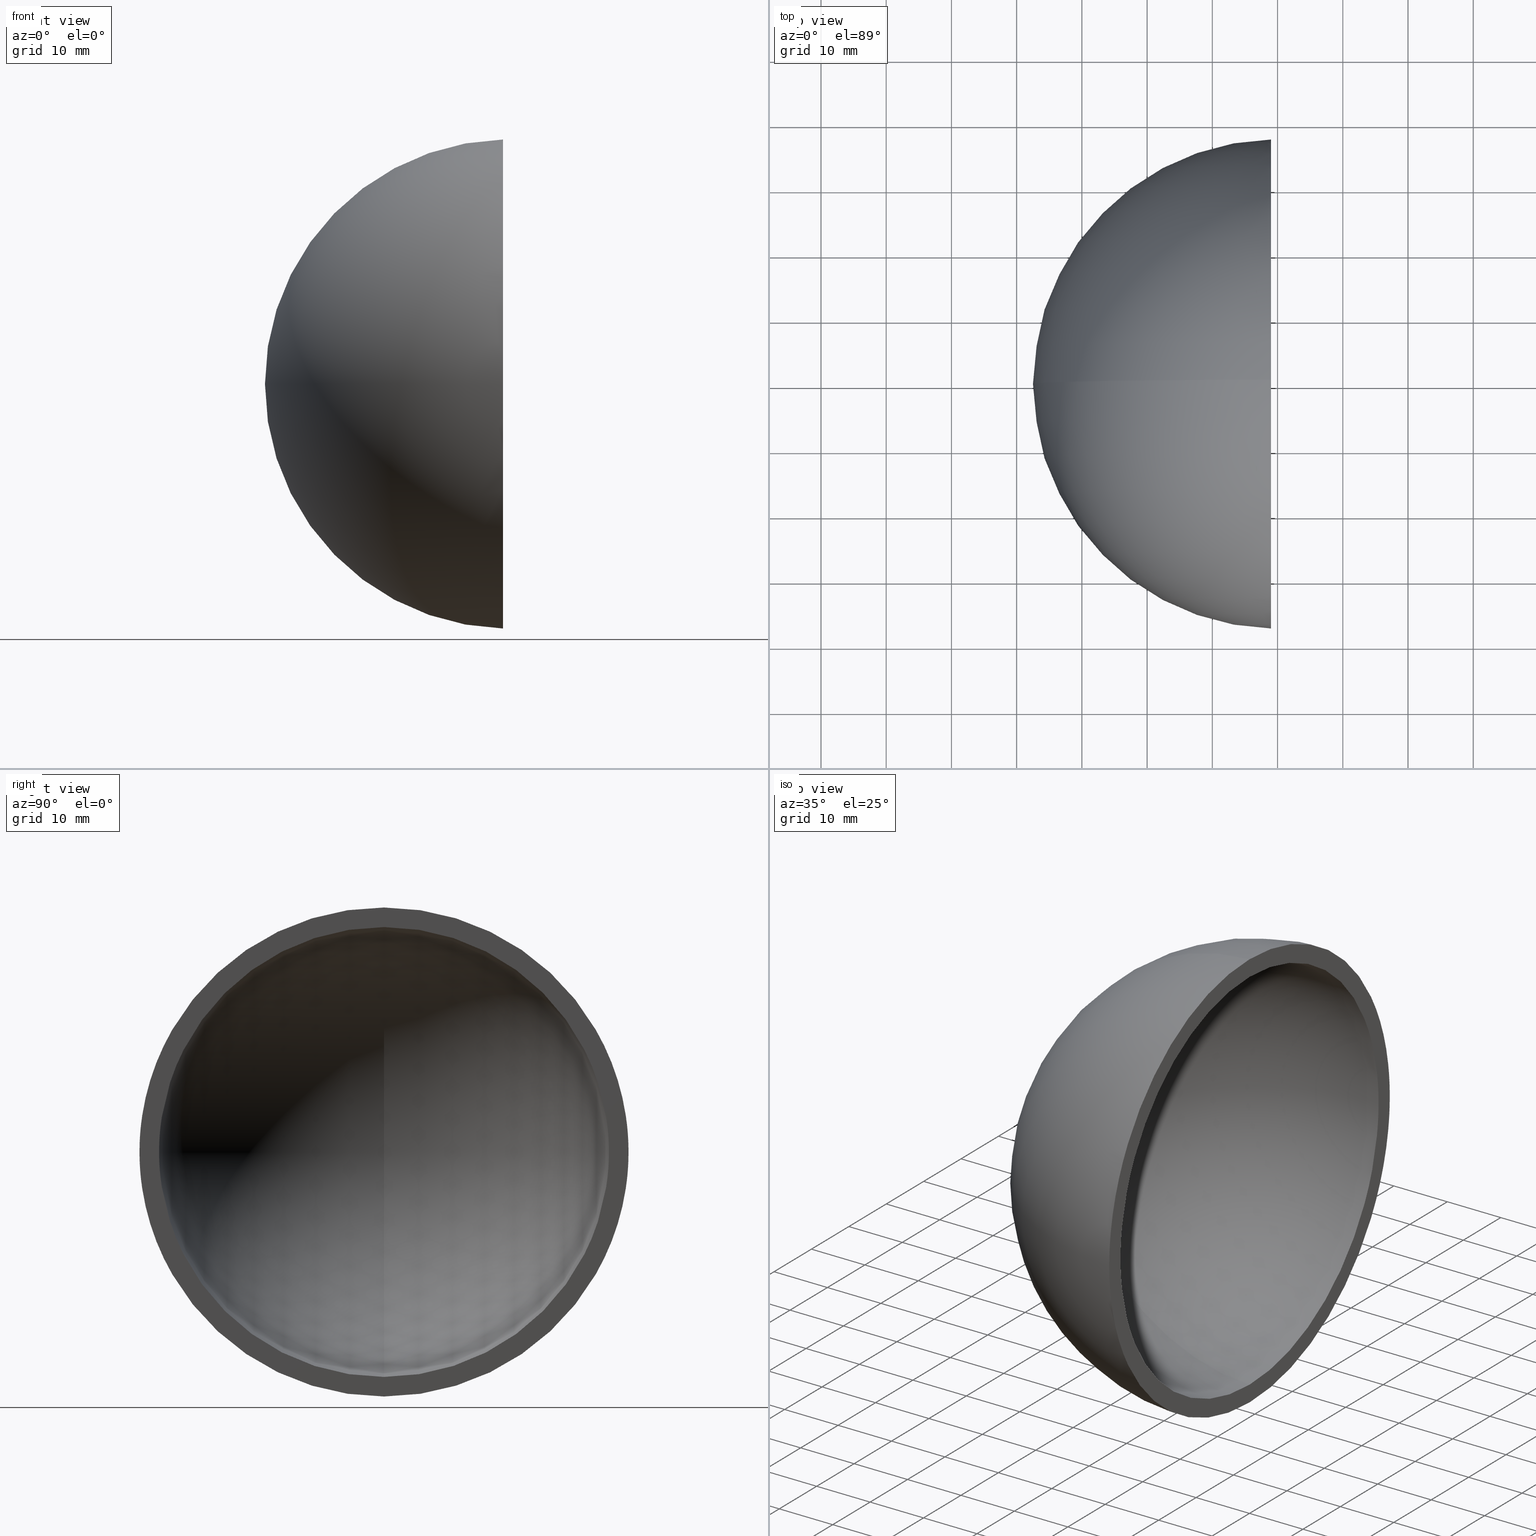
[diagram: canonical four-view strip — front | top / right | iso, engineering-drawing reading convention]
A machine part, canonical four-view strip (front | top / right | iso — engineering-drawing reading convention). The complete STEP part file that produces these views, byte-faithful:
ISO-10303-21;
HEADER;
FILE_DESCRIPTION (( 'STEP AP214' ),
    '1' );
FILE_NAME ('197537.STEP',
    '2019-07-23T02:36:20',
    ( 'user' ),
    ( '΢���й�' ),
    'SwSTEP 2.0',
    'SolidWorks 2016',
    '' );
FILE_SCHEMA (( 'AUTOMOTIVE_DESIGN' ));
ENDSEC;

DATA;
#1 = PRESENTATION_STYLE_ASSIGNMENT (( #18 ) ) ;
#2 = ADVANCED_FACE ( 'NONE', ( #104 ), #143, .T. ) ;
#3 = EDGE_LOOP ( 'NONE', ( #59, #113, #107 ) ) ;
#4 = AXIS2_PLACEMENT_3D ( 'NONE', #68, #30, #21 ) ;
#5 = UNCERTAINTY_MEASURE_WITH_UNIT (LENGTH_MEASURE( 1.000000000000000100E-005 ), #115, 'distance_accuracy_value', 'NONE');
#6 = DIRECTION ( 'NONE',  ( 0.0000000000000000000, -1.000000000000000000, 1.224646799147353200E-016 ) ) ;
#7 = CIRCLE ( 'NONE', #42, 37.48666429545312400 ) ;
#8 = CARTESIAN_POINT ( 'NONE',  ( 0.0000000000000000000, 0.0000000000000000000, 0.0000000000000000000 ) ) ;
#9 = SHAPE_DEFINITION_REPRESENTATION ( #83, #77 ) ;
#10 = DIRECTION ( 'NONE',  ( -1.000000000000000000, 0.0000000000000000000, 0.0000000000000000000 ) ) ;
#11 = EDGE_CURVE ( 'NONE', #94, #35, #33, .T. ) ;
#12 = PRESENTATION_LAYER_ASSIGNMENT (  '', '', ( #60 ) ) ;
#13 = FACE_OUTER_BOUND ( 'NONE', #88, .T. ) ;
#14 = ORIENTED_EDGE ( 'NONE', *, *, #65, .T. ) ;
#15 = AXIS2_PLACEMENT_3D ( 'NONE', #114, #90, #163 ) ;
#16 = ADVANCED_FACE ( 'NONE', ( #109, #72 ), #93, .F. ) ;
#17 = APPLICATION_PROTOCOL_DEFINITION ( 'draft international standard', 'automotive_design', 1998, #99 ) ;
#18 = SURFACE_STYLE_USAGE ( .BOTH. , #100 ) ;
#19 = CLOSED_SHELL ( 'NONE', ( #125, #2, #61, #16, #74 ) ) ;
#20 = DIRECTION ( 'NONE',  ( 0.0000000000000000000, -1.224646799147353200E-016, -1.000000000000000000 ) ) ;
#21 = DIRECTION ( 'NONE',  ( 0.0000000000000000000, -1.224646799147353200E-016, -1.000000000000000000 ) ) ;
#22 = EDGE_CURVE ( 'NONE', #35, #97, #39, .T. ) ;
#23 = MECHANICAL_DESIGN_GEOMETRIC_PRESENTATION_REPRESENTATION (  '', ( #60 ), #63 ) ;
#24 = ORIENTED_EDGE ( 'NONE', *, *, #22, .F. ) ;
#25 = CARTESIAN_POINT ( 'NONE',  ( -37.50000000000000000, 0.0000000000000000000, 2.296212748401287200E-015 ) ) ;
#26 = MECHANICAL_DESIGN_GEOMETRIC_PRESENTATION_REPRESENTATION (  '', ( #162 ), #172 ) ;
#27 = ORIENTED_EDGE ( 'NONE', *, *, #145, .F. ) ;
#28 = AXIS2_PLACEMENT_3D ( 'NONE', #46, #105, #160 ) ;
#29 = VERTEX_POINT ( 'NONE', #121 ) ;
#30 = DIRECTION ( 'NONE',  ( 0.0000000000000000000, -1.000000000000000000, 1.224646799147353200E-016 ) ) ;
#31 = PRODUCT_DEFINITION_FORMATION_WITH_SPECIFIED_SOURCE ( '�κ�', '', #170, .NOT_KNOWN. ) ;
#32 =( NAMED_UNIT ( * ) PLANE_ANGLE_UNIT ( ) SI_UNIT ( $, .RADIAN. ) );
#33 = CIRCLE ( 'NONE', #43, 37.50000000000000000 ) ;
#34 = FILL_AREA_STYLE ('',( #101 ) ) ;
#35 = VERTEX_POINT ( 'NONE', #95 ) ;
#36 = EDGE_CURVE ( 'NONE', #94, #97, #142, .T. ) ;
#37 = DIRECTION ( 'NONE',  ( 0.0000000000000000000, 0.0000000000000000000, -1.000000000000000000 ) ) ;
#38 = CARTESIAN_POINT ( 'NONE',  ( -0.9999999999999940000, 0.0000000000000000000, 0.0000000000000000000 ) ) ;
#39 = CIRCLE ( 'NONE', #103, 37.48666429545312400 ) ;
#40 = EDGE_CURVE ( 'NONE', #29, #120, #137, .T. ) ;
#41 = ORIENTED_EDGE ( 'NONE', *, *, #40, .F. ) ;
#42 = AXIS2_PLACEMENT_3D ( 'NONE', #51, #53, #117 ) ;
#43 = AXIS2_PLACEMENT_3D ( 'NONE', #164, #79, #141 ) ;
#44 = COLOUR_RGB ( '',1.000000000000000000, 1.000000000000000000, 1.000000000000000000 ) ;
#45 = AXIS2_PLACEMENT_3D ( 'NONE', #148, #49, #64 ) ;
#46 = CARTESIAN_POINT ( 'NONE',  ( 0.0000000000000000000, 0.0000000000000000000, 0.0000000000000000000 ) ) ;
#47 = FACE_OUTER_BOUND ( 'NONE', #159, .T. ) ;
#48 = CARTESIAN_POINT ( 'NONE',  ( 0.0000000000000000000, 0.0000000000000000000, 0.0000000000000000000 ) ) ;
#49 = DIRECTION ( 'NONE',  ( 0.0000000000000000000, -1.000000000000000000, 0.0000000000000000000 ) ) ;
#50 = APPLICATION_PROTOCOL_DEFINITION ( 'draft international standard', 'automotive_design', 1998, #165 ) ;
#51 = CARTESIAN_POINT ( 'NONE',  ( -0.9999999999999940000, 0.0000000000000000000, 0.0000000000000000000 ) ) ;
#52 = DIRECTION ( 'NONE',  ( 0.0000000000000000000, 0.0000000000000000000, 1.000000000000000000 ) ) ;
#53 = DIRECTION ( 'NONE',  ( 1.000000000000000000, -0.0000000000000000000, -0.0000000000000000000 ) ) ;
#54 = CIRCLE ( 'NONE', #15, 34.48550420104076200 ) ;
#55 = VERTEX_POINT ( 'NONE', #157 ) ;
#56 = DIRECTION ( 'NONE',  ( 1.000000000000000000, -0.0000000000000000000, -0.0000000000000000000 ) ) ;
#57 = SURFACE_STYLE_FILL_AREA ( #34 ) ;
#58 = CIRCLE ( 'NONE', #66, 34.48550420104076200 ) ;
#59 = ORIENTED_EDGE ( 'NONE', *, *, #36, .F. ) ;
#60 = STYLED_ITEM ( 'NONE', ( #136 ), #77 ) ;
#61 = ADVANCED_FACE ( 'NONE', ( #78 ), #112, .T. ) ;
#62 =( NAMED_UNIT ( * ) SI_UNIT ( $, .STERADIAN. ) SOLID_ANGLE_UNIT ( ) );
#63 =( GEOMETRIC_REPRESENTATION_CONTEXT ( 3 ) GLOBAL_UNCERTAINTY_ASSIGNED_CONTEXT ( ( #131 ) ) GLOBAL_UNIT_ASSIGNED_CONTEXT ( ( #149, #158, #75 ) ) REPRESENTATION_CONTEXT ( 'NONE', 'WORKASPACE' ) );
#64 = DIRECTION ( 'NONE',  ( 0.0000000000000000000, 0.0000000000000000000, 1.000000000000000000 ) ) ;
#65 = EDGE_CURVE ( 'NONE', #97, #35, #7, .T. ) ;
#66 = AXIS2_PLACEMENT_3D ( 'NONE', #139, #106, #37 ) ;
#67 = ORIENTED_EDGE ( 'NONE', *, *, #36, .T. ) ;
#68 = CARTESIAN_POINT ( 'NONE',  ( 0.0000000000000000000, 0.0000000000000000000, 0.0000000000000000000 ) ) ;
#69 = ORIENTED_EDGE ( 'NONE', *, *, #89, .T. ) ;
#70 = ORIENTED_EDGE ( 'NONE', *, *, #171, .F. ) ;
#71 = AXIS2_PLACEMENT_3D ( 'NONE', #138, #10, #108 ) ;
#72 = FACE_OUTER_BOUND ( 'NONE', #127, .T. ) ;
#73 = MANIFOLD_SOLID_BREP ( '��ת1', #19 ) ;
#74 = ADVANCED_FACE ( 'NONE', ( #47 ), #87, .F. ) ;
#75 =( NAMED_UNIT ( * ) SI_UNIT ( $, .STERADIAN. ) SOLID_ANGLE_UNIT ( ) );
#76 = DIRECTION ( 'NONE',  ( 0.0000000000000000000, 1.000000000000000000, 0.0000000000000000000 ) ) ;
#77 = ADVANCED_BREP_SHAPE_REPRESENTATION ( '197537', ( #73, #122 ), #98 ) ;
#78 = FACE_OUTER_BOUND ( 'NONE', #3, .T. ) ;
#79 = DIRECTION ( 'NONE',  ( 0.0000000000000000000, 1.000000000000000000, 0.0000000000000000000 ) ) ;
#80 = DIRECTION ( 'NONE',  ( 1.000000000000000000, 0.0000000000000000000, 0.0000000000000000000 ) ) ;
#81 = SURFACE_STYLE_FILL_AREA ( #126 ) ;
#82 = PRODUCT_RELATED_PRODUCT_CATEGORY ( 'part', '', ( #170 ) ) ;
#83 = PRODUCT_DEFINITION_SHAPE ( 'NONE', 'NONE',  #128 ) ;
#84 = DIRECTION ( 'NONE',  ( 0.0000000000000000000, -1.000000000000000000, 0.0000000000000000000 ) ) ;
#85 = DIRECTION ( 'NONE',  ( 0.0000000000000000000, -1.000000000000000000, 0.0000000000000000000 ) ) ;
#86 = PRESENTATION_LAYER_ASSIGNMENT (  '', '', ( #162 ) ) ;
#87 = SPHERICAL_SURFACE ( 'NONE', #96, 34.49999999999999300 ) ;
#88 = EDGE_LOOP ( 'NONE', ( #41, #147, #169 ) ) ;
#89 = EDGE_CURVE ( 'NONE', #120, #55, #54, .T. ) ;
#90 = DIRECTION ( 'NONE',  ( 1.000000000000000000, -0.0000000000000000000, -0.0000000000000000000 ) ) ;
#91 = DIRECTION ( 'NONE',  ( 0.0000000000000000000, 0.0000000000000000000, 1.000000000000000000 ) ) ;
#92 = DIRECTION ( 'NONE',  ( 0.0000000000000000000, 0.0000000000000000000, 1.000000000000000000 ) ) ;
#93 = PLANE ( 'NONE',  #71 ) ;
#94 = VERTEX_POINT ( 'NONE', #25 ) ;
#95 = CARTESIAN_POINT ( 'NONE',  ( -0.9999999999999940000, 0.0000000000000000000, 37.48666429545312400 ) ) ;
#96 = AXIS2_PLACEMENT_3D ( 'NONE', #166, #85, #118 ) ;
#97 = VERTEX_POINT ( 'NONE', #150 ) ;
#98 =( GEOMETRIC_REPRESENTATION_CONTEXT ( 3 ) GLOBAL_UNCERTAINTY_ASSIGNED_CONTEXT ( ( #152 ) ) GLOBAL_UNIT_ASSIGNED_CONTEXT ( ( #132, #140, #161 ) ) REPRESENTATION_CONTEXT ( 'NONE', 'WORKASPACE' ) );
#99 = APPLICATION_CONTEXT ( 'automotive_design' ) ;
#100 = SURFACE_SIDE_STYLE ('',( #81 ) ) ;
#101 = FILL_AREA_STYLE_COLOUR ( '', #154 ) ;
#102 = CARTESIAN_POINT ( 'NONE',  ( 0.0000000000000000000, 0.0000000000000000000, 0.0000000000000000000 ) ) ;
#103 = AXIS2_PLACEMENT_3D ( 'NONE', #38, #56, #134 ) ;
#104 = FACE_OUTER_BOUND ( 'NONE', #133, .T. ) ;
#105 = DIRECTION ( 'NONE',  ( 0.0000000000000000000, -1.000000000000000000, 0.0000000000000000000 ) ) ;
#106 = DIRECTION ( 'NONE',  ( 1.000000000000000000, -0.0000000000000000000, -0.0000000000000000000 ) ) ;
#107 = ORIENTED_EDGE ( 'NONE', *, *, #65, .F. ) ;
#108 = DIRECTION ( 'NONE',  ( 0.0000000000000000000, 0.0000000000000000000, 1.000000000000000000 ) ) ;
#109 = FACE_BOUND ( 'NONE', #153, .T. ) ;
#110 = PRODUCT_DEFINITION_CONTEXT ( 'detailed design', #165, 'design' ) ;
#111 = ORIENTED_EDGE ( 'NONE', *, *, #22, .T. ) ;
#112 = SPHERICAL_SURFACE ( 'NONE', #28, 37.50000000000000000 ) ;
#113 = ORIENTED_EDGE ( 'NONE', *, *, #11, .T. ) ;
#114 = CARTESIAN_POINT ( 'NONE',  ( -0.9999999999999945600, 0.0000000000000000000, 0.0000000000000000000 ) ) ;
#115 =( LENGTH_UNIT ( ) NAMED_UNIT ( * ) SI_UNIT ( .MILLI., .METRE. ) );
#116 = AXIS2_PLACEMENT_3D ( 'NONE', #144, #76, #52 ) ;
#117 = DIRECTION ( 'NONE',  ( 0.0000000000000000000, 0.0000000000000000000, -1.000000000000000000 ) ) ;
#118 = DIRECTION ( 'NONE',  ( 0.0000000000000000000, 0.0000000000000000000, 1.000000000000000000 ) ) ;
#119 = SURFACE_STYLE_USAGE ( .BOTH. , #129 ) ;
#120 = VERTEX_POINT ( 'NONE', #168 ) ;
#121 = CARTESIAN_POINT ( 'NONE',  ( -34.49999999999999300, 0.0000000000000000000, 2.112515728529183700E-015 ) ) ;
#122 = AXIS2_PLACEMENT_3D ( 'NONE', #48, #92, #80 ) ;
#123 = ORIENTED_EDGE ( 'NONE', *, *, #89, .F. ) ;
#124 = AXIS2_PLACEMENT_3D ( 'NONE', #102, #84, #91 ) ;
#125 = ADVANCED_FACE ( 'NONE', ( #13 ), #155, .F. ) ;
#126 = FILL_AREA_STYLE ('',( #130 ) ) ;
#127 = EDGE_LOOP ( 'NONE', ( #111, #14 ) ) ;
#128 = PRODUCT_DEFINITION ( 'δ֪', '', #31, #110 ) ;
#129 = SURFACE_SIDE_STYLE ('',( #57 ) ) ;
#130 = FILL_AREA_STYLE_COLOUR ( '', #44 ) ;
#131 = UNCERTAINTY_MEASURE_WITH_UNIT (LENGTH_MEASURE( 1.000000000000000100E-005 ), #149, 'distance_accuracy_value', 'NONE');
#132 =( LENGTH_UNIT ( ) NAMED_UNIT ( * ) SI_UNIT ( .MILLI., .METRE. ) );
#133 = EDGE_LOOP ( 'NONE', ( #156, #67, #24 ) ) ;
#134 = DIRECTION ( 'NONE',  ( 0.0000000000000000000, 0.0000000000000000000, -1.000000000000000000 ) ) ;
#135 = AXIS2_PLACEMENT_3D ( 'NONE', #8, #6, #20 ) ;
#136 = PRESENTATION_STYLE_ASSIGNMENT (( #119 ) ) ;
#137 = CIRCLE ( 'NONE', #116, 34.49999999999999300 ) ;
#138 = CARTESIAN_POINT ( 'NONE',  ( -0.9999999999999943400, 0.0000000000000000000, 34.48550420104076200 ) ) ;
#139 = CARTESIAN_POINT ( 'NONE',  ( -0.9999999999999945600, 0.0000000000000000000, 0.0000000000000000000 ) ) ;
#140 =( NAMED_UNIT ( * ) PLANE_ANGLE_UNIT ( ) SI_UNIT ( $, .RADIAN. ) );
#141 = DIRECTION ( 'NONE',  ( 0.0000000000000000000, 0.0000000000000000000, 1.000000000000000000 ) ) ;
#142 = CIRCLE ( 'NONE', #4, 37.50000000000000000 ) ;
#143 = SPHERICAL_SURFACE ( 'NONE', #124, 37.50000000000000000 ) ;
#144 = CARTESIAN_POINT ( 'NONE',  ( 0.0000000000000000000, 0.0000000000000000000, 0.0000000000000000000 ) ) ;
#145 = EDGE_CURVE ( 'NONE', #29, #55, #146, .T. ) ;
#146 = CIRCLE ( 'NONE', #135, 34.49999999999999300 ) ;
#147 = ORIENTED_EDGE ( 'NONE', *, *, #145, .T. ) ;
#148 = CARTESIAN_POINT ( 'NONE',  ( 0.0000000000000000000, 0.0000000000000000000, 0.0000000000000000000 ) ) ;
#149 =( LENGTH_UNIT ( ) NAMED_UNIT ( * ) SI_UNIT ( .MILLI., .METRE. ) );
#150 = CARTESIAN_POINT ( 'NONE',  ( -0.9999999999999940000, -4.590792344013803300E-015, -37.48666429545312400 ) ) ;
#151 = PRODUCT_CONTEXT ( 'NONE', #99, 'mechanical' ) ;
#152 = UNCERTAINTY_MEASURE_WITH_UNIT (LENGTH_MEASURE( 1.000000000000000100E-005 ), #132, 'distance_accuracy_value', 'NONE');
#153 = EDGE_LOOP ( 'NONE', ( #123, #70 ) ) ;
#154 = COLOUR_RGB ( '',1.000000000000000000, 1.000000000000000000, 1.000000000000000000 ) ;
#155 = SPHERICAL_SURFACE ( 'NONE', #45, 34.49999999999999300 ) ;
#156 = ORIENTED_EDGE ( 'NONE', *, *, #11, .F. ) ;
#157 = CARTESIAN_POINT ( 'NONE',  ( -0.9999999999999945600, -4.223256233678716200E-015, -34.48550420104076200 ) ) ;
#158 =( NAMED_UNIT ( * ) PLANE_ANGLE_UNIT ( ) SI_UNIT ( $, .RADIAN. ) );
#159 = EDGE_LOOP ( 'NONE', ( #27, #167, #69 ) ) ;
#160 = DIRECTION ( 'NONE',  ( 0.0000000000000000000, 0.0000000000000000000, 1.000000000000000000 ) ) ;
#161 =( NAMED_UNIT ( * ) SI_UNIT ( $, .STERADIAN. ) SOLID_ANGLE_UNIT ( ) );
#162 = STYLED_ITEM ( 'NONE', ( #1 ), #73 ) ;
#163 = DIRECTION ( 'NONE',  ( 0.0000000000000000000, 0.0000000000000000000, -1.000000000000000000 ) ) ;
#164 = CARTESIAN_POINT ( 'NONE',  ( 0.0000000000000000000, 0.0000000000000000000, 0.0000000000000000000 ) ) ;
#165 = APPLICATION_CONTEXT ( 'automotive_design' ) ;
#166 = CARTESIAN_POINT ( 'NONE',  ( 0.0000000000000000000, 0.0000000000000000000, 0.0000000000000000000 ) ) ;
#167 = ORIENTED_EDGE ( 'NONE', *, *, #40, .T. ) ;
#168 = CARTESIAN_POINT ( 'NONE',  ( -0.9999999999999945600, 0.0000000000000000000, 34.48550420104076200 ) ) ;
#169 = ORIENTED_EDGE ( 'NONE', *, *, #171, .T. ) ;
#170 = PRODUCT ( '197537', '197537', '', ( #151 ) ) ;
#171 = EDGE_CURVE ( 'NONE', #55, #120, #58, .T. ) ;
#172 =( GEOMETRIC_REPRESENTATION_CONTEXT ( 3 ) GLOBAL_UNCERTAINTY_ASSIGNED_CONTEXT ( ( #5 ) ) GLOBAL_UNIT_ASSIGNED_CONTEXT ( ( #115, #32, #62 ) ) REPRESENTATION_CONTEXT ( 'NONE', 'WORKASPACE' ) );
ENDSEC;
END-ISO-10303-21;
